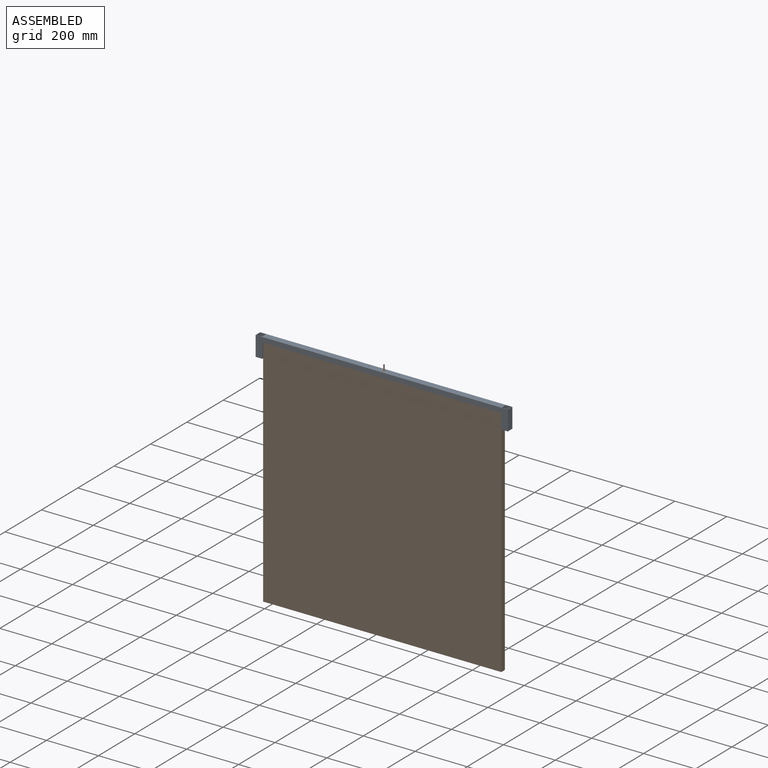
[diagram: assembled view]
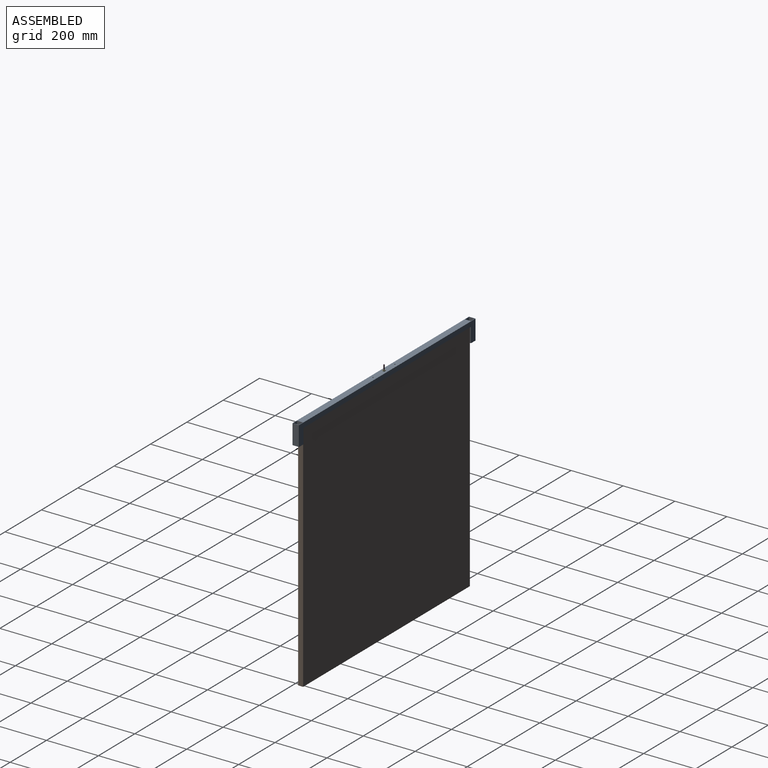
[diagram: assembled view, second angle]
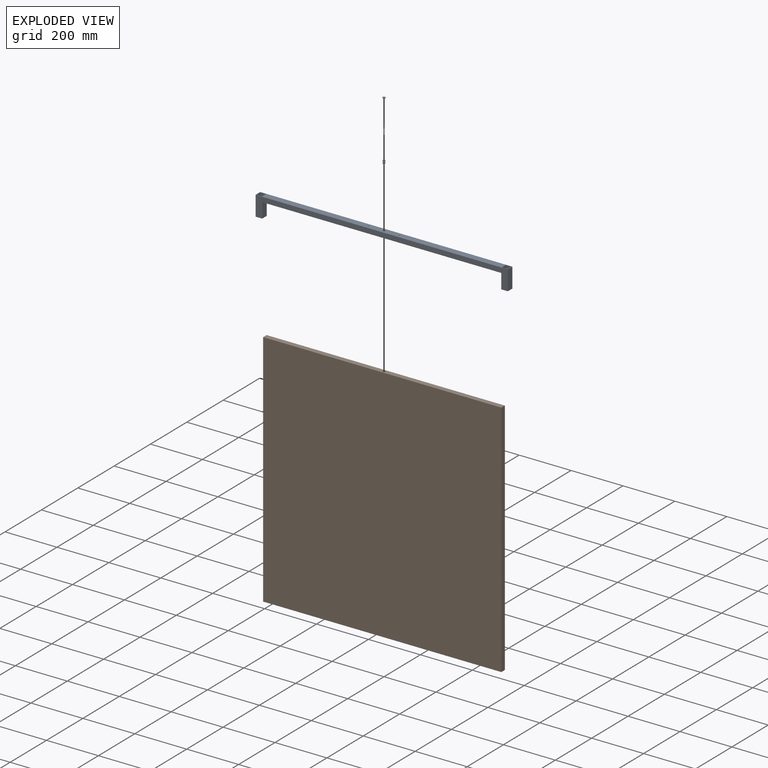
[diagram: exploded view]
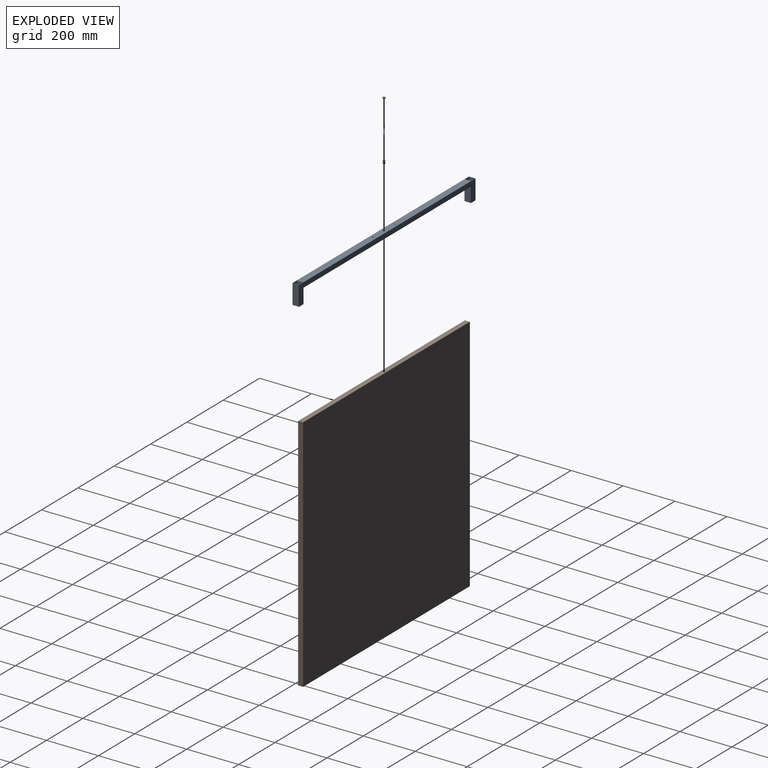
[diagram: exploded view, second angle]
ASSEMBLY  parts=5 mates=4
PART A: 33 faces, bbox 971.6x25.4x76.2 mm
  f0: plane 74.6x24.4mm, normal (1,0,0), area 1781.9mm2, adj f8,f10,f11,f12,f13,f14,f29,f32
  f1: plane 970.55x76.2mm, normal (0,1,0), area 21277.9mm2, adj f8,f9,f12,f24,f25,f28,f31,f32
  f2: plane 76.2x24.4mm, normal (-1,0,0), area 1859.3mm2, adj f8,f9,f30,f31
  f3: plane 76.2x22.2mm, normal (1,0,0), area 1691.6mm2, adj f4,f6,f8,f9
  f4: plane 76.2x22.2mm, normal (0,-1,0), area 1691.6mm2, adj f3,f5,f8,f9
  f5: plane 76.2x22.2mm, normal (-1,0,0), area 1691.6mm2, adj f4,f6,f8,f9
  f6: plane 76.2x22.2mm, normal (0,1,0), area 1691.6mm2, adj f3,f5,f8,f9
  f7: plane 970.55x76.2mm, normal (0,-1,0), area 21277.9mm2, adj f8,f9,f13,f24,f26,f27,f29,f30
  f8: plane 25.4x25.4mm, normal (0,0,-1), area 152.1mm2, adj f0,f1,f2,f3,f4,f5,f6,f7
  f9: plane 971.55x25.4mm, normal (0,0,1), area 23611.2mm2, adj f1,f2,f3,f4,f5,f6,f7,f15
  f10: plane 920.75x22.2mm, normal (0,0,-1), area 20360.4mm2, adj f0,f11,f14,f15,f16,f17,f18
  f11: plane 920.75x17.45mm, normal (0,-1,0), area 16067.1mm2, adj f0,f10,f12,f18
  f12: plane 921.75x1.6mm, normal (0,0,-1), area 1473.3mm2, adj f0,f1,f11,f18,f25,f32
  f13: plane 921.75x1.6mm, normal (0,0,-1), area 1473.3mm2, adj f0,f7,f14,f18,f26,f29
  f14: plane 920.75x17.45mm, normal (0,1,0), area 16067.1mm2, adj f0,f10,f13,f18
  f15: cylinder r=3.77mm len=7.54mm, axis (0,0,1), area 37.9mm2, adj f9,f10
  f16: cylinder r=2.38mm len=4.76mm, axis (0,0,1), area 23.9mm2, adj f9,f10
  f17: cylinder r=2.38mm len=4.76mm, axis (0,0,1), area 23.9mm2, adj f9,f10
  f18: plane 74.6x24.4mm, normal (-1,0,0), area 1781.9mm2, adj f10,f11,f12,f13,f14,f24,f25,f26
  f19: plane 76.2x22.2mm, normal (1,0,0), area 1691.6mm2, adj f9,f20,f23,f24
  f20: plane 76.2x22.2mm, normal (0,-1,0), area 1691.6mm2, adj f9,f19,f21,f24
  f21: plane 76.2x22.2mm, normal (-1,0,0), area 1691.6mm2, adj f9,f20,f23,f24
  f22: plane 76.2x24.4mm, normal (1,0,0), area 1859.3mm2, adj f9,f24,f27,f28
  f23: plane 76.2x22.2mm, normal (0,1,0), area 1691.6mm2, adj f9,f19,f21,f24
  f24: plane 25.4x25.4mm, normal (0,0,-1), area 152.1mm2, adj f1,f7,f18,f19,f20,f21,f22,f23
  f25: cylinder r=0.5mm len=57.15mm, axis (0,0,1), area 44.9mm2, adj f1,f12,f18,f24
  f26: cylinder r=0.5mm len=57.15mm, axis (0,0,-1), area 44.9mm2, adj f7,f13,f18,f24
  f27: cylinder r=0.5mm len=76.2mm, axis (0,0,1), area 59.8mm2, adj f7,f9,f22,f24
  f28: cylinder r=0.5mm len=76.2mm, axis (0,0,-1), area 59.8mm2, adj f1,f9,f22,f24
  f29: cylinder r=0.5mm len=57.15mm, axis (0,0,1), area 44.9mm2, adj f0,f7,f8,f13
  f30: cylinder r=0.5mm len=76.2mm, axis (0,0,-1), area 59.8mm2, adj f2,f7,f8,f9
  f31: cylinder r=0.5mm len=76.2mm, axis (0,0,1), area 59.8mm2, adj f1,f2,f8,f9
  f32: cylinder r=0.5mm len=57.15mm, axis (0,0,-1), area 44.9mm2, adj f0,f1,f8,f12
PART B: 14 faces, bbox 917.6x19.1x920.8 mm
  f0: plane 920.75x19.05mm, normal (1,0,0), area 17540.3mm2, adj f1,f3,f4,f5
  f1: plane 920.75x917.55mm, normal (0,1,0), area 844834.2mm2, adj f0,f2,f4,f5
  f2: plane 920.75x19.05mm, normal (-1,0,0), area 17540.3mm2, adj f1,f3,f4,f5
  f3: plane 920.75x917.55mm, normal (0,-1,0), area 844834.2mm2, adj f0,f2,f4,f5
  f4: plane 917.55x19.05mm, normal (0,0,-1), area 17479.3mm2, adj f0,f1,f2,f3
  f5: plane 917.55x19.05mm, normal (0,0,1), area 17399.5mm2, adj f0,f1,f2,f3,f8,f11,f13
  f6: cylinder r=3.97mm len=12.19mm, axis (0,0,1), area 304mm2, adj f7,f9
  f7: plane 9.5x9.5mm, normal (0,0,1), area 21.4mm2, adj f6,f8
  f8: cylinder r=4.75mm len=9.5mm, axis (0,0,1), area 113.7mm2, adj f5,f7
  f9: cone r=0mm half-angle=59deg, axis (0,0,1), area 57.7mm2, adj f6
  f10: cone r=0mm half-angle=59deg, axis (0,0,1), area 5.2mm2, adj f11
  f11: cylinder r=1.19mm len=20mm, axis (0,0,1), area 149.6mm2, adj f5,f10
  f12: cone r=0mm half-angle=59deg, axis (0,0,1), area 5.2mm2, adj f13
  f13: cylinder r=1.19mm len=20mm, axis (0,0,1), area 149.6mm2, adj f5,f12
PART C: 284 faces, bbox 10.6x10.6x13.3 mm
  f0: plane 5.7x5.7mm, normal (0,0,-1), area 7mm2, adj f1,f5,f282
  f1: cone r=2.41mm half-angle=45deg, axis (0,0,-1), area 5mm2, adj f0,f2,f281,f283
  f2: cylinder r=1.92mm len=6.22mm, axis (0,0,1), area 12.9mm2, adj f1,f3,f281,f283
  f3: cone r=1.92mm half-angle=45deg, axis (0,0,1), area 24.8mm2, adj f2,f6,f281,f282,f283
  f4: cylinder r=3.76mm len=11.14mm, axis (0,0,1), area 211.8mm2, adj f5,f10,f11,f12,f13,f14,f15,f16
  f5: cone r=3.76mm half-angle=45deg, axis (0,0,1), area 27mm2, adj f0,f4
  f6: cylinder r=3.21mm len=6.41mm, axis (0,0,1), area 97.2mm2, adj f3,f7
  f7: plane 9.02x9.02mm, normal (0,0,1), area 31.6mm2, adj f6,f8
  f8: cone r=4.51mm half-angle=63.4deg, axis (0,0,-1), area 26.2mm2, adj f7,f9
  f9: cylinder r=5.27mm len=10.54mm, axis (0,0,1), area 12.6mm2, adj f8,f10
  f10: plane 10.54x10.54mm, normal (0,0,-1), area 42.9mm2, adj f4,f9
  f11: plane 3.55x0.13mm, normal (-0.71,0.71,0), area 0.6mm2, adj f4,f12,f14,f15
  f12: plane 0.53x0.13mm, normal (-0.71,0.69,0.17), area 0mm2, adj f4,f11,f13
  f13: plane 0.53x0.13mm, normal (-0.71,-0.69,0.17), area 0mm2, adj f4,f12,f14
  f14: plane 3.55x0.13mm, normal (-0.71,-0.71,0), area 0.6mm2, adj f4,f11,f13,f15
  f15: plane 0.25x0.13mm, normal (-0.71,0,-0.71), area 0mm2, adj f4,f11,f14
  f16: plane 3.55x0.14mm, normal (-0.62,0.78,0), area 0.6mm2, adj f4,f17,f19,f20
  f17: plane 0.53x0.14mm, normal (-0.62,0.76,0.17), area 0mm2, adj f4,f16,f18
  f18: plane 0.53x0.14mm, normal (-0.78,-0.6,0.17), area 0mm2, adj f4,f17,f19
  f19: plane 3.55x0.14mm, normal (-0.78,-0.62,0), area 0.6mm2, adj f4,f16,f18,f20
  f20: plane 0.25x0.14mm, normal (-0.7,0.08,-0.71), area 0mm2, adj f4,f16,f19
  f21: plane 3.55x0.15mm, normal (-0.52,0.85,0), area 0.6mm2, adj f4,f22,f24,f25
  f22: plane 0.53x0.15mm, normal (-0.53,0.83,0.17), area 0mm2, adj f4,f21,f23
  f23: plane 0.53x0.15mm, normal (-0.85,-0.5,0.17), area 0mm2, adj f4,f22,f24
  f24: plane 3.55x0.15mm, normal (-0.85,-0.52,0), area 0.6mm2, adj f4,f21,f23,f25
  f25: plane 0.24x0.15mm, normal (-0.69,0.16,-0.71), area 0mm2, adj f4,f21,f24
  f26: plane 3.55x0.16mm, normal (-0.42,0.91,0), area 0.6mm2, adj f4,f27,f29,f30
  f27: plane 0.53x0.16mm, normal (-0.43,0.89,0.17), area 0mm2, adj f4,f26,f28
  f28: plane 0.53x0.16mm, normal (-0.9,-0.4,0.17), area 0mm2, adj f4,f27,f29
  f29: plane 3.55x0.16mm, normal (-0.91,-0.42,0), area 0.6mm2, adj f4,f26,f28,f30
  f30: plane 0.24x0.16mm, normal (-0.66,0.24,-0.71), area 0mm2, adj f4,f26,f29
  f31: plane 3.55x0.17mm, normal (-0.31,0.95,0), area 0.6mm2, adj f4,f32,f34,f35
  f32: plane 0.53x0.17mm, normal (-0.32,0.93,0.17), area 0mm2, adj f4,f31,f33
  f33: plane 0.53x0.17mm, normal (-0.94,-0.3,0.17), area 0mm2, adj f4,f32,f34
  f34: plane 3.55x0.17mm, normal (-0.95,-0.31,0), area 0.6mm2, adj f4,f31,f33,f35
  f35: plane 0.22x0.17mm, normal (-0.63,0.32,-0.71), area 0mm2, adj f4,f31,f34
  f36: plane 3.55x0.17mm, normal (-0.2,0.98,0), area 0.6mm2, adj f4,f37,f39,f40
  f37: plane 0.53x0.18mm, normal (-0.21,0.96,0.17), area 0mm2, adj f4,f36,f38
  f38: plane 0.53x0.18mm, normal (-0.97,-0.18,0.17), area 0mm2, adj f4,f37,f39
  f39: plane 3.55x0.17mm, normal (-0.98,-0.2,0), area 0.6mm2, adj f4,f36,f38,f40
  f40: plane 0.21x0.17mm, normal (-0.59,0.39,-0.71), area 0mm2, adj f4,f36,f39
  f41: plane 3.55x0.18mm, normal (-0.09,1,0), area 0.6mm2, adj f4,f42,f44,f45
  f42: plane 0.53x0.18mm, normal (-0.1,0.98,0.17), area 0mm2, adj f4,f41,f43
  f43: plane 0.53x0.18mm, normal (-0.98,-0.07,0.17), area 0mm2, adj f4,f42,f44
  f44: plane 3.55x0.18mm, normal (-1,-0.09,0), area 0.6mm2, adj f4,f41,f43,f45
  f45: plane 0.19x0.18mm, normal (-0.54,0.45,-0.71), area 0mm2, adj f4,f41,f44
  f46: plane 3.55x0.18mm, normal (0.03,1,0), area 0.6mm2, adj f4,f47,f49,f50
  f47: plane 0.53x0.18mm, normal (0.01,0.99,0.17), area 0mm2, adj f4,f46,f48
  f48: plane 0.53x0.18mm, normal (-0.98,0.04,0.17), area 0mm2, adj f4,f47,f49
  f49: plane 3.55x0.18mm, normal (-1,0.03,0), area 0.6mm2, adj f4,f46,f48,f50
  f50: plane 0.18x0.18mm, normal (-0.49,0.51,-0.71), area 0mm2, adj f4,f46,f49
  f51: plane 3.55x0.18mm, normal (0.14,0.99,0), area 0.6mm2, adj f4,f52,f54,f55
  f52: plane 0.53x0.18mm, normal (0.13,0.98,0.17), area 0mm2, adj f4,f51,f53
  f53: plane 0.53x0.18mm, normal (-0.97,0.16,0.17), area 0mm2, adj f4,f52,f54
  f54: plane 3.55x0.18mm, normal (-0.99,0.14,0), area 0.6mm2, adj f4,f51,f53,f55
  f55: plane 0.2x0.18mm, normal (-0.42,0.57,-0.71), area 0mm2, adj f4,f51,f54
  f56: plane 3.55x0.17mm, normal (0.26,0.97,0), area 0.6mm2, adj f4,f57,f59,f60
  f57: plane 0.53x0.17mm, normal (0.24,0.96,0.17), area 0mm2, adj f4,f56,f58
  f58: plane 0.53x0.17mm, normal (-0.95,0.27,0.17), area 0mm2, adj f4,f57,f59
  f59: plane 3.55x0.17mm, normal (-0.97,0.26,0), area 0.6mm2, adj f4,f56,f58,f60
  f60: plane 0.22x0.17mm, normal (-0.35,0.61,-0.71), area 0mm2, adj f4,f56,f59
  f61: plane 3.55x0.16mm, normal (0.37,0.93,0), area 0.6mm2, adj f4,f62,f64,f65
  f62: plane 0.53x0.17mm, normal (0.35,0.92,0.17), area 0mm2, adj f4,f61,f63
  f63: plane 0.53x0.17mm, normal (-0.91,0.38,0.17), area 0mm2, adj f4,f62,f64
  f64: plane 3.55x0.16mm, normal (-0.93,0.37,0), area 0.6mm2, adj f4,f61,f63,f65
  f65: plane 0.23x0.17mm, normal (-0.28,0.65,-0.71), area 0mm2, adj f4,f61,f64
  f66: plane 3.55x0.16mm, normal (0.47,0.88,0), area 0.6mm2, adj f4,f67,f69,f70
  f67: plane 0.53x0.16mm, normal (0.45,0.87,0.17), area 0mm2, adj f4,f66,f68
  f68: plane 0.53x0.16mm, normal (-0.86,0.48,0.17), area 0mm2, adj f4,f67,f69
  f69: plane 3.55x0.16mm, normal (-0.88,0.47,0), area 0.6mm2, adj f4,f66,f68,f70
  f70: plane 0.24x0.16mm, normal (-0.2,0.68,-0.71), area 0mm2, adj f4,f66,f69
  f71: plane 3.55x0.14mm, normal (0.57,0.82,0), area 0.6mm2, adj f4,f72,f74,f75
  f72: plane 0.53x0.15mm, normal (0.55,0.82,0.17), area 0mm2, adj f4,f71,f73
  f73: plane 0.53x0.15mm, normal (-0.8,0.58,0.17), area 0mm2, adj f4,f72,f74
  f74: plane 3.55x0.14mm, normal (-0.82,0.57,0), area 0.6mm2, adj f4,f71,f73,f75
  f75: plane 0.25x0.15mm, normal (-0.12,0.7,-0.71), area 0mm2, adj f4,f71,f74
  f76: plane 3.55x0.13mm, normal (0.66,0.75,0), area 0.6mm2, adj f4,f77,f79,f80
  f77: plane 0.53x0.14mm, normal (0.64,0.75,0.17), area 0mm2, adj f4,f76,f78
  f78: plane 0.53x0.14mm, normal (-0.73,0.67,0.17), area 0mm2, adj f4,f77,f79
  f79: plane 3.55x0.13mm, normal (-0.75,0.66,0), area 0.6mm2, adj f4,f76,f78,f80
  f80: plane 0.25x0.13mm, normal (-0.04,0.71,-0.71), area 0mm2, adj f4,f76,f79
  f81: plane 3.55x0.13mm, normal (0.75,0.66,0), area 0.6mm2, adj f4,f82,f84,f85
  f82: plane 0.53x0.14mm, normal (0.73,0.67,0.17), area 0mm2, adj f4,f81,f83
  f83: plane 0.53x0.14mm, normal (-0.64,0.75,0.17), area 0mm2, adj f4,f82,f84
  f84: plane 3.55x0.13mm, normal (-0.66,0.75,0), area 0.6mm2, adj f4,f81,f83,f85
  f85: plane 0.25x0.13mm, normal (0.04,0.71,-0.71), area 0mm2, adj f4,f81,f84
  f86: plane 3.55x0.14mm, normal (0.82,0.57,0), area 0.6mm2, adj f4,f87,f89,f90
  f87: plane 0.53x0.15mm, normal (0.8,0.58,0.17), area 0mm2, adj f4,f86,f88
  f88: plane 0.53x0.15mm, normal (-0.55,0.82,0.17), area 0mm2, adj f4,f87,f89
  f89: plane 3.55x0.14mm, normal (-0.57,0.82,0), area 0.6mm2, adj f4,f86,f88,f90
  f90: plane 0.25x0.15mm, normal (0.12,0.7,-0.71), area 0mm2, adj f4,f86,f89
  f91: plane 3.55x0.16mm, normal (0.88,0.47,0), area 0.6mm2, adj f4,f92,f94,f95
  f92: plane 0.53x0.16mm, normal (0.86,0.48,0.17), area 0mm2, adj f4,f91,f93
  f93: plane 0.53x0.16mm, normal (-0.45,0.87,0.17), area 0mm2, adj f4,f92,f94
  f94: plane 3.55x0.16mm, normal (-0.47,0.88,0), area 0.6mm2, adj f4,f91,f93,f95
  f95: plane 0.24x0.16mm, normal (0.2,0.68,-0.71), area 0mm2, adj f4,f91,f94
  f96: plane 3.55x0.16mm, normal (0.93,0.37,0), area 0.6mm2, adj f4,f97,f99,f100
  f97: plane 0.53x0.17mm, normal (0.91,0.38,0.17), area 0mm2, adj f4,f96,f98
  f98: plane 0.53x0.17mm, normal (-0.35,0.92,0.17), area 0mm2, adj f4,f97,f99
  f99: plane 3.55x0.16mm, normal (-0.37,0.93,0), area 0.6mm2, adj f4,f96,f98,f100
  f100: plane 0.23x0.17mm, normal (0.28,0.65,-0.71), area 0mm2, adj f4,f96,f99
  f101: plane 3.55x0.17mm, normal (0.97,0.26,0), area 0.6mm2, adj f4,f102,f104,f105
  f102: plane 0.53x0.17mm, normal (0.95,0.27,0.17), area 0mm2, adj f4,f101,f103
  f103: plane 0.53x0.17mm, normal (-0.24,0.96,0.17), area 0mm2, adj f4,f102,f104
  f104: plane 3.55x0.17mm, normal (-0.26,0.97,0), area 0.6mm2, adj f4,f101,f103,f105
  f105: plane 0.22x0.17mm, normal (0.35,0.61,-0.71), area 0mm2, adj f4,f101,f104
  f106: plane 3.55x0.18mm, normal (0.99,0.14,0), area 0.6mm2, adj f4,f107,f109,f110
  f107: plane 0.53x0.18mm, normal (0.97,0.16,0.17), area 0mm2, adj f4,f106,f108
  f108: plane 0.53x0.18mm, normal (-0.13,0.98,0.17), area 0mm2, adj f4,f107,f109
  f109: plane 3.55x0.18mm, normal (-0.14,0.99,0), area 0.6mm2, adj f4,f106,f108,f110
  f110: plane 0.2x0.18mm, normal (0.42,0.57,-0.71), area 0mm2, adj f4,f106,f109
  f111: plane 3.55x0.18mm, normal (1,0.03,0), area 0.6mm2, adj f4,f112,f114,f115
  f112: plane 0.53x0.18mm, normal (0.98,0.04,0.17), area 0mm2, adj f4,f111,f113
  f113: plane 0.53x0.18mm, normal (-0.01,0.99,0.17), area 0mm2, adj f4,f112,f114
  f114: plane 3.55x0.18mm, normal (-0.03,1,0), area 0.6mm2, adj f4,f111,f113,f115
  f115: plane 0.18x0.18mm, normal (0.49,0.51,-0.71), area 0mm2, adj f4,f111,f114
  f116: plane 3.55x0.18mm, normal (1,-0.09,0), area 0.6mm2, adj f4,f117,f119,f120
  f117: plane 0.53x0.18mm, normal (0.98,-0.07,0.17), area 0mm2, adj f4,f116,f118
  f118: plane 0.53x0.18mm, normal (0.1,0.98,0.17), area 0mm2, adj f4,f117,f119
  f119: plane 3.55x0.18mm, normal (0.09,1,0), area 0.6mm2, adj f4,f116,f118,f120
  f120: plane 0.19x0.18mm, normal (0.54,0.45,-0.71), area 0mm2, adj f4,f116,f119
  f121: plane 3.55x0.17mm, normal (0.98,-0.2,0), area 0.6mm2, adj f4,f122,f124,f125
  f122: plane 0.53x0.18mm, normal (0.97,-0.18,0.17), area 0mm2, adj f4,f121,f123
  f123: plane 0.53x0.18mm, normal (0.21,0.96,0.17), area 0mm2, adj f4,f122,f124
  f124: plane 3.55x0.17mm, normal (0.2,0.98,0), area 0.6mm2, adj f4,f121,f123,f125
  f125: plane 0.21x0.17mm, normal (0.59,0.39,-0.71), area 0mm2, adj f4,f121,f124
  f126: plane 3.55x0.17mm, normal (0.95,-0.31,0), area 0.6mm2, adj f4,f127,f129,f130
  f127: plane 0.53x0.17mm, normal (0.94,-0.3,0.17), area 0mm2, adj f4,f126,f128
  f128: plane 0.53x0.17mm, normal (0.32,0.93,0.17), area 0mm2, adj f4,f127,f129
  f129: plane 3.55x0.17mm, normal (0.31,0.95,0), area 0.6mm2, adj f4,f126,f128,f130
  f130: plane 0.22x0.17mm, normal (0.63,0.32,-0.71), area 0mm2, adj f4,f126,f129
  f131: plane 3.55x0.16mm, normal (0.91,-0.42,0), area 0.6mm2, adj f4,f132,f134,f135
  f132: plane 0.53x0.16mm, normal (0.9,-0.4,0.17), area 0mm2, adj f4,f131,f133
  f133: plane 0.53x0.16mm, normal (0.43,0.89,0.17), area 0mm2, adj f4,f132,f134
  f134: plane 3.55x0.16mm, normal (0.42,0.91,0), area 0.6mm2, adj f4,f131,f133,f135
  f135: plane 0.24x0.16mm, normal (0.66,0.24,-0.71), area 0mm2, adj f4,f131,f134
  f136: plane 3.55x0.15mm, normal (0.85,-0.52,0), area 0.6mm2, adj f4,f137,f139,f140
  f137: plane 0.53x0.15mm, normal (0.85,-0.5,0.17), area 0mm2, adj f4,f136,f138
  f138: plane 0.53x0.15mm, normal (0.53,0.83,0.17), area 0mm2, adj f4,f137,f139
  f139: plane 3.55x0.15mm, normal (0.52,0.85,0), area 0.6mm2, adj f4,f136,f138,f140
  f140: plane 0.24x0.15mm, normal (0.69,0.16,-0.71), area 0mm2, adj f4,f136,f139
  f141: plane 3.55x0.14mm, normal (0.78,-0.62,0), area 0.6mm2, adj f4,f142,f144,f145
  f142: plane 0.53x0.14mm, normal (0.78,-0.6,0.17), area 0mm2, adj f4,f141,f143
  f143: plane 0.53x0.14mm, normal (0.62,0.76,0.17), area 0mm2, adj f4,f142,f144
  f144: plane 3.55x0.14mm, normal (0.62,0.78,0), area 0.6mm2, adj f4,f141,f143,f145
  f145: plane 0.25x0.14mm, normal (0.7,0.08,-0.71), area 0mm2, adj f4,f141,f144
  f146: plane 3.55x0.13mm, normal (0.71,-0.71,0), area 0.6mm2, adj f4,f147,f149,f150
  f147: plane 0.53x0.13mm, normal (0.71,-0.69,0.17), area 0mm2, adj f4,f146,f148
  f148: plane 0.53x0.13mm, normal (0.71,0.69,0.17), area 0mm2, adj f4,f147,f149
  f149: plane 3.55x0.13mm, normal (0.71,0.71,0), area 0.6mm2, adj f4,f146,f148,f150
  f150: plane 0.25x0.13mm, normal (0.71,0,-0.71), area 0mm2, adj f4,f146,f149
  f151: plane 3.55x0.14mm, normal (0.62,-0.78,0), area 0.6mm2, adj f4,f152,f154,f155
  f152: plane 0.53x0.14mm, normal (0.62,-0.76,0.17), area 0mm2, adj f4,f151,f153
  f153: plane 0.53x0.14mm, normal (0.78,0.6,0.17), area 0mm2, adj f4,f152,f154
  f154: plane 3.55x0.14mm, normal (0.78,0.62,0), area 0.6mm2, adj f4,f151,f153,f155
  f155: plane 0.25x0.14mm, normal (0.7,-0.08,-0.71), area 0mm2, adj f4,f151,f154
  f156: plane 3.55x0.15mm, normal (0.52,-0.85,0), area 0.6mm2, adj f4,f157,f159,f160
  f157: plane 0.53x0.15mm, normal (0.53,-0.83,0.17), area 0mm2, adj f4,f156,f158
  f158: plane 0.53x0.15mm, normal (0.85,0.5,0.17), area 0mm2, adj f4,f157,f159
  f159: plane 3.55x0.15mm, normal (0.85,0.52,0), area 0.6mm2, adj f4,f156,f158,f160
  f160: plane 0.24x0.15mm, normal (0.69,-0.16,-0.71), area 0mm2, adj f4,f156,f159
  f161: plane 3.55x0.16mm, normal (0.42,-0.91,0), area 0.6mm2, adj f4,f162,f164,f165
  f162: plane 0.53x0.16mm, normal (0.43,-0.89,0.17), area 0mm2, adj f4,f161,f163
  f163: plane 0.53x0.16mm, normal (0.9,0.4,0.17), area 0mm2, adj f4,f162,f164
  f164: plane 3.55x0.16mm, normal (0.91,0.42,0), area 0.6mm2, adj f4,f161,f163,f165
  f165: plane 0.24x0.16mm, normal (0.66,-0.24,-0.71), area 0mm2, adj f4,f161,f164
  f166: plane 3.55x0.17mm, normal (0.31,-0.95,0), area 0.6mm2, adj f4,f167,f169,f170
  f167: plane 0.53x0.17mm, normal (0.32,-0.93,0.17), area 0mm2, adj f4,f166,f168
  f168: plane 0.53x0.17mm, normal (0.94,0.3,0.17), area 0mm2, adj f4,f167,f169
  f169: plane 3.55x0.17mm, normal (0.95,0.31,0), area 0.6mm2, adj f4,f166,f168,f170
  f170: plane 0.22x0.17mm, normal (0.63,-0.32,-0.71), area 0mm2, adj f4,f166,f169
  f171: plane 3.55x0.17mm, normal (0.2,-0.98,0), area 0.6mm2, adj f4,f172,f174,f175
  f172: plane 0.53x0.18mm, normal (0.21,-0.96,0.17), area 0mm2, adj f4,f171,f173
  f173: plane 0.53x0.18mm, normal (0.97,0.18,0.17), area 0mm2, adj f4,f172,f174
  f174: plane 3.55x0.17mm, normal (0.98,0.2,0), area 0.6mm2, adj f4,f171,f173,f175
  f175: plane 0.21x0.17mm, normal (0.59,-0.39,-0.71), area 0mm2, adj f4,f171,f174
  f176: plane 3.55x0.18mm, normal (0.09,-1,0), area 0.6mm2, adj f4,f177,f179,f180
  f177: plane 0.53x0.18mm, normal (0.1,-0.98,0.17), area 0mm2, adj f4,f176,f178
  f178: plane 0.53x0.18mm, normal (0.98,0.07,0.17), area 0mm2, adj f4,f177,f179
  f179: plane 3.55x0.18mm, normal (1,0.09,0), area 0.6mm2, adj f4,f176,f178,f180
  f180: plane 0.19x0.18mm, normal (0.54,-0.45,-0.71), area 0mm2, adj f4,f176,f179
  f181: plane 3.55x0.18mm, normal (-0.03,-1,0), area 0.6mm2, adj f4,f182,f184,f185
  f182: plane 0.53x0.18mm, normal (-0.01,-0.99,0.17), area 0mm2, adj f4,f181,f183
  f183: plane 0.53x0.18mm, normal (0.98,-0.04,0.17), area 0mm2, adj f4,f182,f184
  f184: plane 3.55x0.18mm, normal (1,-0.03,0), area 0.6mm2, adj f4,f181,f183,f185
  f185: plane 0.18x0.18mm, normal (0.49,-0.51,-0.71), area 0mm2, adj f4,f181,f184
  f186: plane 3.55x0.18mm, normal (-0.14,-0.99,0), area 0.6mm2, adj f4,f187,f189,f190
  f187: plane 0.53x0.18mm, normal (-0.13,-0.98,0.17), area 0mm2, adj f4,f186,f188
  f188: plane 0.53x0.18mm, normal (0.97,-0.16,0.17), area 0mm2, adj f4,f187,f189
  f189: plane 3.55x0.18mm, normal (0.99,-0.14,0), area 0.6mm2, adj f4,f186,f188,f190
  f190: plane 0.2x0.18mm, normal (0.42,-0.57,-0.71), area 0mm2, adj f4,f186,f189
  f191: plane 3.55x0.17mm, normal (-0.26,-0.97,0), area 0.6mm2, adj f4,f192,f194,f195
  f192: plane 0.53x0.17mm, normal (-0.24,-0.96,0.17), area 0mm2, adj f4,f191,f193
  f193: plane 0.53x0.17mm, normal (0.95,-0.27,0.17), area 0mm2, adj f4,f192,f194
  f194: plane 3.55x0.17mm, normal (0.97,-0.26,0), area 0.6mm2, adj f4,f191,f193,f195
  f195: plane 0.22x0.17mm, normal (0.35,-0.61,-0.71), area 0mm2, adj f4,f191,f194
  f196: plane 3.55x0.16mm, normal (-0.37,-0.93,0), area 0.6mm2, adj f4,f197,f199,f200
  f197: plane 0.53x0.17mm, normal (-0.35,-0.92,0.17), area 0mm2, adj f4,f196,f198
  f198: plane 0.53x0.17mm, normal (0.91,-0.38,0.17), area 0mm2, adj f4,f197,f199
  f199: plane 3.55x0.16mm, normal (0.93,-0.37,0), area 0.6mm2, adj f4,f196,f198,f200
  f200: plane 0.23x0.17mm, normal (0.28,-0.65,-0.71), area 0mm2, adj f4,f196,f199
  f201: plane 3.55x0.16mm, normal (-0.47,-0.88,0), area 0.6mm2, adj f4,f202,f204,f205
  f202: plane 0.53x0.16mm, normal (-0.45,-0.87,0.17), area 0mm2, adj f4,f201,f203
  f203: plane 0.53x0.16mm, normal (0.86,-0.48,0.17), area 0mm2, adj f4,f202,f204
  f204: plane 3.55x0.16mm, normal (0.88,-0.47,0), area 0.6mm2, adj f4,f201,f203,f205
  f205: plane 0.24x0.16mm, normal (0.2,-0.68,-0.71), area 0mm2, adj f4,f201,f204
  f206: plane 3.55x0.14mm, normal (-0.57,-0.82,0), area 0.6mm2, adj f4,f207,f209,f210
  f207: plane 0.53x0.15mm, normal (-0.55,-0.82,0.17), area 0mm2, adj f4,f206,f208
  f208: plane 0.53x0.15mm, normal (0.8,-0.58,0.17), area 0mm2, adj f4,f207,f209
  f209: plane 3.55x0.14mm, normal (0.82,-0.57,0), area 0.6mm2, adj f4,f206,f208,f210
  f210: plane 0.25x0.15mm, normal (0.12,-0.7,-0.71), area 0mm2, adj f4,f206,f209
  f211: plane 3.55x0.13mm, normal (-0.66,-0.75,0), area 0.6mm2, adj f4,f212,f214,f215
  f212: plane 0.53x0.14mm, normal (-0.64,-0.75,0.17), area 0mm2, adj f4,f211,f213
  f213: plane 0.53x0.14mm, normal (0.73,-0.67,0.17), area 0mm2, adj f4,f212,f214
  f214: plane 3.55x0.13mm, normal (0.75,-0.66,0), area 0.6mm2, adj f4,f211,f213,f215
  f215: plane 0.25x0.13mm, normal (0.04,-0.71,-0.71), area 0mm2, adj f4,f211,f214
  f216: plane 3.55x0.13mm, normal (-0.75,-0.66,0), area 0.6mm2, adj f4,f217,f219,f220
  f217: plane 0.53x0.14mm, normal (-0.73,-0.67,0.17), area 0mm2, adj f4,f216,f218
  f218: plane 0.53x0.14mm, normal (0.64,-0.75,0.17), area 0mm2, adj f4,f217,f219
  f219: plane 3.55x0.13mm, normal (0.66,-0.75,0), area 0.6mm2, adj f4,f216,f218,f220
  f220: plane 0.25x0.13mm, normal (-0.04,-0.71,-0.71), area 0mm2, adj f4,f216,f219
  f221: plane 3.55x0.14mm, normal (-0.82,-0.57,0), area 0.6mm2, adj f4,f222,f224,f225
  f222: plane 0.53x0.15mm, normal (-0.8,-0.58,0.17), area 0mm2, adj f4,f221,f223
  f223: plane 0.53x0.15mm, normal (0.55,-0.82,0.17), area 0mm2, adj f4,f222,f224
  f224: plane 3.55x0.14mm, normal (0.57,-0.82,0), area 0.6mm2, adj f4,f221,f223,f225
  f225: plane 0.25x0.15mm, normal (-0.12,-0.7,-0.71), area 0mm2, adj f4,f221,f224
  f226: plane 3.55x0.16mm, normal (-0.88,-0.47,0), area 0.6mm2, adj f4,f227,f229,f230
  f227: plane 0.53x0.16mm, normal (-0.86,-0.48,0.17), area 0mm2, adj f4,f226,f228
  f228: plane 0.53x0.16mm, normal (0.45,-0.87,0.17), area 0mm2, adj f4,f227,f229
  f229: plane 3.55x0.16mm, normal (0.47,-0.88,0), area 0.6mm2, adj f4,f226,f228,f230
  f230: plane 0.24x0.16mm, normal (-0.2,-0.68,-0.71), area 0mm2, adj f4,f226,f229
  f231: plane 3.55x0.16mm, normal (-0.93,-0.37,0), area 0.6mm2, adj f4,f232,f234,f235
  f232: plane 0.53x0.17mm, normal (-0.91,-0.38,0.17), area 0mm2, adj f4,f231,f233
  f233: plane 0.53x0.17mm, normal (0.35,-0.92,0.17), area 0mm2, adj f4,f232,f234
  f234: plane 3.55x0.16mm, normal (0.37,-0.93,0), area 0.6mm2, adj f4,f231,f233,f235
  f235: plane 0.23x0.17mm, normal (-0.28,-0.65,-0.71), area 0mm2, adj f4,f231,f234
  f236: plane 3.55x0.17mm, normal (-0.97,-0.26,0), area 0.6mm2, adj f4,f237,f239,f240
  f237: plane 0.53x0.17mm, normal (-0.95,-0.27,0.17), area 0mm2, adj f4,f236,f238
  f238: plane 0.53x0.17mm, normal (0.24,-0.96,0.17), area 0mm2, adj f4,f237,f239
  f239: plane 3.55x0.17mm, normal (0.26,-0.97,0), area 0.6mm2, adj f4,f236,f238,f240
  f240: plane 0.22x0.17mm, normal (-0.35,-0.61,-0.71), area 0mm2, adj f4,f236,f239
  f241: plane 3.55x0.18mm, normal (-0.99,-0.14,0), area 0.6mm2, adj f4,f242,f244,f245
  f242: plane 0.53x0.18mm, normal (-0.97,-0.16,0.17), area 0mm2, adj f4,f241,f243
  f243: plane 0.53x0.18mm, normal (0.13,-0.98,0.17), area 0mm2, adj f4,f242,f244
  f244: plane 3.55x0.18mm, normal (0.14,-0.99,0), area 0.6mm2, adj f4,f241,f243,f245
  f245: plane 0.2x0.18mm, normal (-0.42,-0.57,-0.71), area 0mm2, adj f4,f241,f244
  f246: plane 3.55x0.18mm, normal (-1,-0.03,0), area 0.6mm2, adj f4,f247,f249,f250
  f247: plane 0.53x0.18mm, normal (-0.98,-0.04,0.17), area 0mm2, adj f4,f246,f248
  f248: plane 0.53x0.18mm, normal (0.01,-0.99,0.17), area 0mm2, adj f4,f247,f249
  f249: plane 3.55x0.18mm, normal (0.03,-1,0), area 0.6mm2, adj f4,f246,f248,f250
  f250: plane 0.18x0.18mm, normal (-0.49,-0.51,-0.71), area 0mm2, adj f4,f246,f249
  f251: plane 3.55x0.18mm, normal (-1,0.09,0), area 0.6mm2, adj f4,f252,f254,f255
  f252: plane 0.53x0.18mm, normal (-0.98,0.07,0.17), area 0mm2, adj f4,f251,f253
  f253: plane 0.53x0.18mm, normal (-0.1,-0.98,0.17), area 0mm2, adj f4,f252,f254
  f254: plane 3.55x0.18mm, normal (-0.09,-1,0), area 0.6mm2, adj f4,f251,f253,f255
  f255: plane 0.19x0.18mm, normal (-0.54,-0.45,-0.71), area 0mm2, adj f4,f251,f254
  f256: plane 3.55x0.17mm, normal (-0.98,0.2,0), area 0.6mm2, adj f4,f257,f259,f260
  f257: plane 0.53x0.18mm, normal (-0.97,0.18,0.17), area 0mm2, adj f4,f256,f258
  f258: plane 0.53x0.18mm, normal (-0.21,-0.96,0.17), area 0mm2, adj f4,f257,f259
  f259: plane 3.55x0.17mm, normal (-0.2,-0.98,0), area 0.6mm2, adj f4,f256,f258,f260
  f260: plane 0.21x0.17mm, normal (-0.59,-0.39,-0.71), area 0mm2, adj f4,f256,f259
  f261: plane 3.55x0.17mm, normal (-0.95,0.31,0), area 0.6mm2, adj f4,f262,f264,f265
  f262: plane 0.53x0.17mm, normal (-0.94,0.3,0.17), area 0mm2, adj f4,f261,f263
  f263: plane 0.53x0.17mm, normal (-0.32,-0.93,0.17), area 0mm2, adj f4,f262,f264
  f264: plane 3.55x0.17mm, normal (-0.31,-0.95,0), area 0.6mm2, adj f4,f261,f263,f265
  f265: plane 0.22x0.17mm, normal (-0.63,-0.32,-0.71), area 0mm2, adj f4,f261,f264
  f266: plane 3.55x0.16mm, normal (-0.91,0.42,0), area 0.6mm2, adj f4,f267,f269,f270
  f267: plane 0.53x0.16mm, normal (-0.9,0.4,0.17), area 0mm2, adj f4,f266,f268
  f268: plane 0.53x0.16mm, normal (-0.43,-0.89,0.17), area 0mm2, adj f4,f267,f269
  f269: plane 3.55x0.16mm, normal (-0.42,-0.91,0), area 0.6mm2, adj f4,f266,f268,f270
  f270: plane 0.24x0.16mm, normal (-0.66,-0.24,-0.71), area 0mm2, adj f4,f266,f269
  f271: plane 3.55x0.15mm, normal (-0.85,0.52,0), area 0.6mm2, adj f4,f272,f274,f275
  f272: plane 0.53x0.15mm, normal (-0.85,0.5,0.17), area 0mm2, adj f4,f271,f273
  f273: plane 0.53x0.15mm, normal (-0.53,-0.83,0.17), area 0mm2, adj f4,f272,f274
  f274: plane 3.55x0.15mm, normal (-0.52,-0.85,0), area 0.6mm2, adj f4,f271,f273,f275
  f275: plane 0.24x0.15mm, normal (-0.69,-0.16,-0.71), area 0mm2, adj f4,f271,f274
  f276: plane 3.55x0.14mm, normal (-0.78,0.62,0), area 0.6mm2, adj f4,f277,f279,f280
  f277: plane 0.53x0.14mm, normal (-0.78,0.6,0.17), area 0mm2, adj f4,f276,f278
  f278: plane 0.53x0.14mm, normal (-0.62,-0.76,0.17), area 0mm2, adj f4,f277,f279
  f279: plane 3.55x0.14mm, normal (-0.62,-0.78,0), area 0.6mm2, adj f4,f276,f278,f280
  f280: plane 0.25x0.14mm, normal (-0.7,-0.08,-0.71), area 0mm2, adj f4,f276,f279
  f281: bspline ~7.66x4.83mm, area 66.2mm2, adj f1,f2,f3,f282
  f282: bspline ~7.54x4.91mm, area 16.7mm2, adj f0,f3,f281,f283
  f283: bspline ~7.66x4.83mm, area 66.2mm2, adj f1,f2,f3,f282
PART D: 37 faces, bbox 5.6x41.3x5.2 mm
  f0: cylinder r=1.9mm len=21.96mm, axis (0,1,0), area 74.2mm2, adj f1,f2,f32,f33
  f1: bspline ~22.39x5.57mm, area 221.6mm2, adj f0,f3,f4,f5,f6,f7,f8,f9
  f2: bspline ~22.92x5.57mm, area 231.7mm2, adj f0,f3,f4,f5,f6,f7,f8,f9
  f3: cylinder r=2.41mm len=18.36mm, axis (0,-1,0), area 273mm2, adj f1,f2,f4,f33,f34
  f4: cylinder r=2.41mm len=4.83mm, axis (0,-1,0), area 1.5mm2, adj f1,f2,f3,f5
  f5: cylinder r=2.41mm len=4.83mm, axis (0,-1,0), area 1.5mm2, adj f1,f2,f4,f6
  f6: cylinder r=2.41mm len=4.83mm, axis (0,-1,0), area 1.5mm2, adj f1,f2,f5,f7
  f7: cylinder r=2.41mm len=4.83mm, axis (0,-1,0), area 1.5mm2, adj f1,f2,f6,f8
  f8: cylinder r=2.41mm len=4.83mm, axis (0,-1,0), area 1.5mm2, adj f1,f2,f7,f9
  f9: cylinder r=2.41mm len=4.83mm, axis (0,-1,0), area 1.5mm2, adj f1,f2,f8,f10
  f10: cylinder r=2.41mm len=4.83mm, axis (0,-1,0), area 1.5mm2, adj f1,f2,f9,f11
  f11: cylinder r=2.41mm len=4.83mm, axis (0,-1,0), area 1.5mm2, adj f1,f2,f10,f12
  f12: cylinder r=2.41mm len=4.83mm, axis (0,-1,0), area 1.5mm2, adj f1,f2,f11,f13
  f13: cylinder r=2.41mm len=4.83mm, axis (0,-1,0), area 1.5mm2, adj f1,f2,f12,f14
  f14: cylinder r=2.41mm len=4.83mm, axis (0,-1,0), area 1.5mm2, adj f1,f2,f13,f15
  f15: cylinder r=2.41mm len=4.83mm, axis (0,-1,0), area 1.5mm2, adj f1,f2,f14,f16
  f16: cylinder r=2.41mm len=4.83mm, axis (0,-1,0), area 1.5mm2, adj f1,f2,f15,f17
  f17: cylinder r=2.41mm len=4.83mm, axis (0,-1,0), area 1.5mm2, adj f1,f2,f16,f18
  f18: cylinder r=2.41mm len=4.83mm, axis (0,-1,0), area 1.5mm2, adj f1,f2,f17,f19
  f19: cylinder r=2.41mm len=4.83mm, axis (0,-1,0), area 1.5mm2, adj f1,f2,f18,f20
  f20: cylinder r=2.41mm len=4.83mm, axis (0,-1,0), area 1.5mm2, adj f1,f2,f19,f21
  f21: cylinder r=2.41mm len=4.83mm, axis (0,-1,0), area 1.5mm2, adj f1,f2,f20,f22
  f22: cylinder r=2.41mm len=4.83mm, axis (0,-1,0), area 1.5mm2, adj f1,f2,f21,f23
  f23: cylinder r=2.41mm len=4.83mm, axis (0,-1,0), area 1.5mm2, adj f1,f2,f22,f24
  f24: cylinder r=2.41mm len=4.83mm, axis (0,-1,0), area 1.5mm2, adj f1,f2,f23,f25
  f25: cylinder r=2.41mm len=4.83mm, axis (0,-1,0), area 1.5mm2, adj f1,f2,f24,f26
  f26: cylinder r=2.41mm len=4.83mm, axis (0,-1,0), area 1.5mm2, adj f1,f2,f25,f27
  f27: cylinder r=2.41mm len=4.83mm, axis (0,-1,0), area 1.5mm2, adj f1,f2,f26,f28
  f28: cylinder r=2.41mm len=4.83mm, axis (0,-1,0), area 1.5mm2, adj f1,f2,f27,f29
  f29: cylinder r=2.41mm len=4.83mm, axis (0,-1,0), area 1.5mm2, adj f1,f2,f28,f30
  f30: cylinder r=2.41mm len=4.83mm, axis (0,-1,0), area 1.2mm2, adj f1,f2,f29,f32
  f31: plane 3.64x3.64mm, normal (0,-1,0), area 10.4mm2, adj f32
  f32: cone r=1.82mm half-angle=45deg, axis (0,1,0), area 6.1mm2, adj f0,f1,f2,f30,f31
  f33: cone r=2.41mm half-angle=70deg, axis (0,1,0), area 3.8mm2, adj f0,f1,f2,f3
  f34: cone r=2.5mm half-angle=25deg, axis (0,-1,0), area 3.9mm2, adj f3,f36
  f35: plane 2.79x2.79mm, normal (0,1,0), area 6.1mm2, adj f36
  f36: torus R=1.4mm, axis (0,-1,0), area 13.6mm2, adj f34,f35
PART E: 26 faces, bbox 11.5x11.5x4.3 mm
  f0: bspline ~4.83x4.83mm, area 27.3mm2, adj f1,f11,f12,f19
  f1: cylinder r=1.9mm len=3.8mm, axis (0,0,-1), area 3.2mm2, adj f0,f2,f12,f19
  f2: bspline ~4.83x4.83mm, area 27.3mm2, adj f1,f11,f12,f19
  f3: plane 9.53x9.53mm, normal (0,0,1), area 53mm2, adj f11,f12,f13,f14,f15,f16,f17,f18
  f4: plane 5.21x3.63mm, normal (-0.5,0.87,0), area 15.9mm2, adj f5,f9,f13,f18,f23,f24
  f5: plane 5.96x3.63mm, normal (-1,0,0), area 15.9mm2, adj f4,f6,f17,f18,f24,f25
  f6: plane 5.21x3.63mm, normal (-0.5,-0.87,0), area 15.9mm2, adj f5,f7,f16,f17,f20,f25
  f7: plane 5.21x3.63mm, normal (0.5,-0.87,0), area 15.9mm2, adj f6,f8,f15,f16,f20,f21
  f8: plane 5.96x3.63mm, normal (1,0,0), area 15.9mm2, adj f7,f9,f14,f15,f21,f22
  f9: plane 5.21x3.63mm, normal (0.5,0.87,0), area 15.9mm2, adj f4,f8,f13,f14,f22,f23
  f10: plane 9.53x9.53mm, normal (0,0,-1), area 53mm2, adj f11,f19,f20,f21,f22,f23,f24,f25
  f11: cylinder r=2.41mm len=4.83mm, axis (0,0,-1), area 6mm2, adj f0,f2,f3,f10
  f12: cone r=2.41mm half-angle=45deg, axis (0,0,1), area 5.1mm2, adj f0,f1,f2,f3
  f13: cone r=4.76mm half-angle=60deg, axis (0,0,-1), area 2.2mm2, adj f3,f4,f9
  f14: cone r=4.76mm half-angle=60deg, axis (0,0,-1), area 2.2mm2, adj f3,f8,f9
  f15: cone r=4.76mm half-angle=60deg, axis (0,0,-1), area 2.2mm2, adj f3,f7,f8
  f16: cone r=4.76mm half-angle=60deg, axis (0,0,-1), area 2.2mm2, adj f3,f6,f7
  f17: cone r=4.76mm half-angle=60deg, axis (0,0,-1), area 2.2mm2, adj f3,f5,f6
  f18: cone r=4.76mm half-angle=60deg, axis (0,0,-1), area 2.2mm2, adj f3,f4,f5
  f19: cone r=2.41mm half-angle=45deg, axis (0,0,-1), area 5.1mm2, adj f0,f1,f2,f10
  f20: cone r=4.76mm half-angle=60deg, axis (0,0,1), area 2.2mm2, adj f6,f7,f10
  f21: cone r=4.76mm half-angle=60deg, axis (0,0,1), area 2.2mm2, adj f7,f8,f10
  f22: cone r=4.76mm half-angle=60deg, axis (0,0,1), area 2.2mm2, adj f8,f9,f10
  f23: cone r=4.76mm half-angle=60deg, axis (0,0,1), area 2.2mm2, adj f4,f9,f10
  f24: cone r=4.76mm half-angle=60deg, axis (0,0,1), area 2.2mm2, adj f4,f5,f10
  f25: cone r=4.76mm half-angle=60deg, axis (0,0,1), area 2.2mm2, adj f5,f6,f10
PLACE A t=(0,0,-9.52)mm
PLACE B t=(0,0,-1.6)mm
PLACE C rot(axis=(0,0,-1),90deg) t=(0,0,0.76)mm
PLACE D rot(axis=(0.58,-0.58,-0.58),120deg) t=(0,0,-17.99)mm
PLACE E rot(axis=(0,0,-1),90deg) t=(0,0,2.35)mm
MATE fastened E.f11 <-> C.f8  axis (0,0,1) through (0,0,0.76)mm
MATE fastened E.f11 <-> D.f0  axis (0,0,1) through (0,0,3.94)mm
MATE fastened C.f2 <-> A.f15  axis (0,0,1) through (0,0,0)mm
MATE fastened B.f6 <-> A.f15  axis (0,0,1) through (0,0,-1.6)mm
